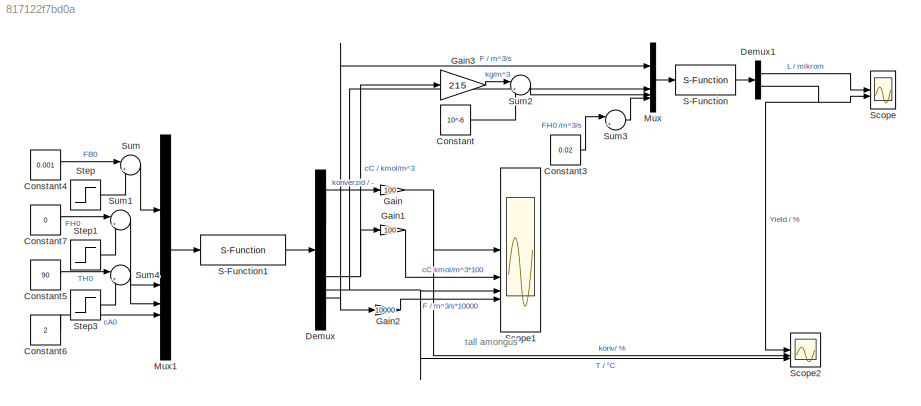
MODEL mdl_817122f7bd0a
KIND model
CONFIG AbsTol = auto
CONFIG EnableMultiTasking = off
CONFIG FixedStep = auto
CONFIG MaxStep = auto
CONFIG MinStep = auto
CONFIG RelTol = 1e-3
CONFIG SampleTimeConstraint = Unconstrained
CONFIG SolverName = VariableStepAuto
CONFIG StartTime = 0.0
CONFIG StopTime = 10^4
BLOCK [Constant] Constant
  Value = 10^-6
BLOCK [Constant] Constant3
  Value = 0.02
BLOCK [Constant] Constant4
  Value = 0.001
BLOCK [Constant] Constant5
  Value = 90
BLOCK [Constant] Constant6
  Value = 2
BLOCK [Constant] Constant7
  Value = 0
BLOCK [Demux] Demux
BLOCK [Demux] Demux1
  Outputs = 2
BLOCK [Gain] Gain
  Gain = 100
BLOCK [Gain] Gain1
  Gain = 100
BLOCK [Gain] Gain2
  Gain = 10000
BLOCK [Gain] Gain3
  Gain = 215
BLOCK [Mux] Mux
  DisplayOption = bar
BLOCK [Mux] Mux1
  DisplayOption = bar
BLOCK [S-Function] S-Function
  EnableBusSupport = off
  FunctionName = KrisztaS
  SFcnIsStateOwnerBlock = off
  SFunctionDeploymentMode = off
BLOCK [S-Function] S-Function1
  EnableBusSupport = off
  FunctionName = ReaktorSMIMO
  SFcnIsStateOwnerBlock = off
  SFunctionDeploymentMode = off
BLOCK [Scope] Scope
  Floating = off
  NumInputPorts = 2
  ScopeSpecificationString = Simulink.scopes.TimeScopeBlockCfg('CurrentConfiguration', extmgr.ConfigurationSet(extmgr.Configuration('Core','General UI',true),extmgr.Configuration('Core','Source UI',true),extmgr.Configuration('Sources','WiredSimulink',true),extmgr.Configuration('Visuals','Time Domain',true,'SerializedDisplays',{struct('MinYLimReal','-12.5','MaxYLimReal','112.5','YLabelReal','','MinYLimMag','0.00000','MaxYLimMa...<+1399ch>
BLOCK [Scope] Scope1
  Floating = off
  NumInputPorts = 4
  ScopeSpecificationString = Simulink.scopes.TimeScopeBlockCfg('CurrentConfiguration', extmgr.ConfigurationSet(extmgr.Configuration('Core','General UI',true),extmgr.Configuration('Core','Source UI',true),extmgr.Configuration('Sources','WiredSimulink',true,'DataLoggingVariableName','ScopeData1'),extmgr.Configuration('Visuals','Time Domain',true,'SerializedDisplays',{struct('MinYLimReal','-12.5','MaxYLimReal','112.5','YLabelRea...<+1777ch>
BLOCK [Scope] Scope2
  Floating = off
  NumInputPorts = 3
  ScopeSpecificationString = Simulink.scopes.TimeScopeBlockCfg('CurrentConfiguration', extmgr.ConfigurationSet(extmgr.Configuration('Core','General UI',true),extmgr.Configuration('Core','Source UI',true),extmgr.Configuration('Sources','WiredSimulink',true,'DataLoggingVariableName','ScopeData1'),extmgr.Configuration('Visuals','Time Domain',true,'SerializedDisplays',{struct('MinYLimReal','96.08827','MaxYLimReal','96.75058','YLa...<+1798ch>
BLOCK [Step] Step
  After = 0.0000
  Before = 0.0000
  SampleTime = 0
  Time = 5000
BLOCK [Step] Step1
  After = 0.01
  SampleTime = 0
  Time = 0
BLOCK [Step] Step3
  After = 0
  SampleTime = 0
BLOCK [Sum] Sum
  Inputs = |++
BLOCK [Sum] Sum1
  Inputs = |++
BLOCK [Sum] Sum2
  Inputs = |++
BLOCK [Sum] Sum3
  Inputs = |++
BLOCK [Sum] Sum4
  Inputs = |++
ANNOTATION (root): tall amongus
LINE Constant3:1 -> Sum3:1
LINE Constant4:1 -> Sum:1
LINE Constant5:1 -> Sum4:1
LINE Constant6:1 -> Mux1:4
LINE Constant7:1 -> Sum1:1
LINE Constant:1 -> Sum2:2
LINE Demux1:1 -> Scope:1
NET Demux1:2 -> Scope2:1, Scope:2
LINE Demux:1 -> Gain:1
NET Demux:2 -> Gain1:1, Gain3:1
NET Demux:3 -> Mux:2, Scope1:3, Scope2:3
NET Demux:4 -> Gain2:1, Mux:1
LINE Gain1:1 -> Scope1:2
LINE Gain2:1 -> Scope1:4
LINE Gain3:1 -> Sum2:1
NET Gain:1 -> Scope1:1, Scope2:2
LINE Mux1:1 -> S-Function1:1
LINE Mux:1 -> S-Function:1
LINE S-Function1:1 -> Demux:1
LINE S-Function:1 -> Demux1:1
LINE Step1:1 -> Sum1:2
LINE Step3:1 -> Sum4:2
LINE Step:1 -> Sum:2
LINE Sum1:1 -> Mux1:2
LINE Sum2:1 -> Mux:3
LINE Sum3:1 -> Mux:4
LINE Sum4:1 -> Mux1:3
LINE Sum:1 -> Mux1:1
note: NET lines group one-source signal fan-out (src -> all destinations, sorted); 1:1 wires keep LINE
